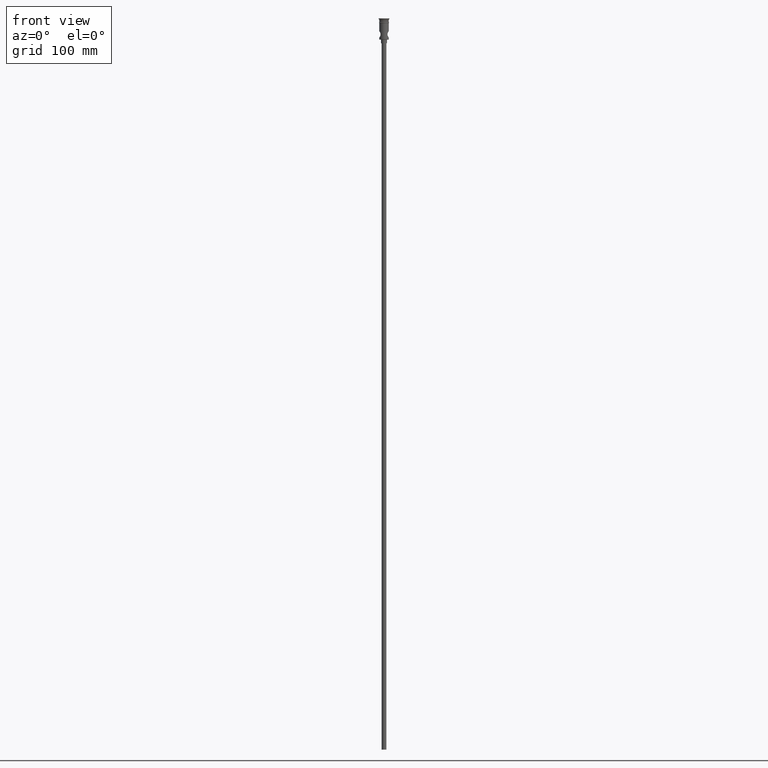
[diagram: clean part render]
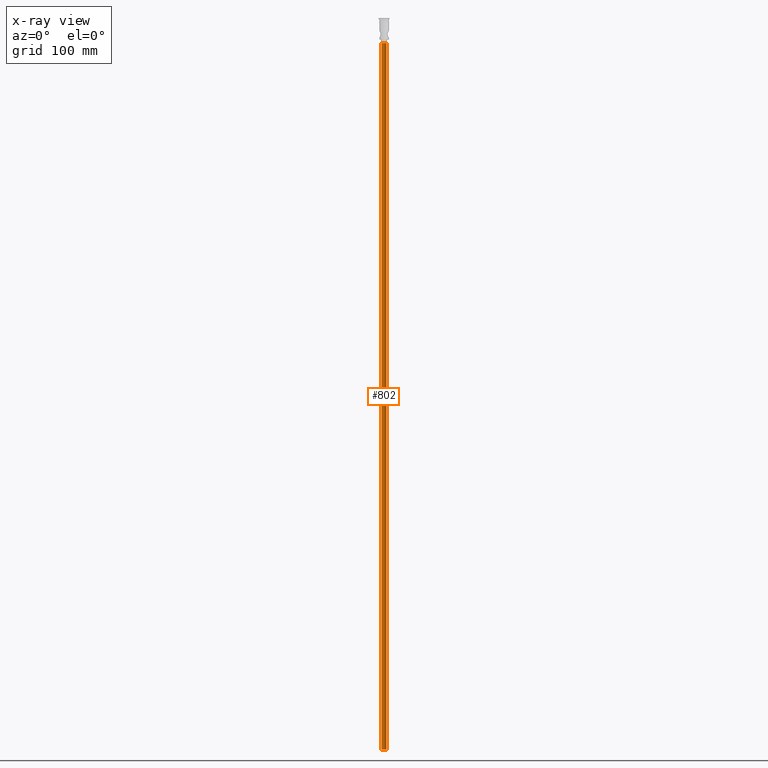
[diagram: x-ray — body ghosted, one internal face saturated and labeled with its STEP entity id]
A machine part, front view, then the same camera in x-ray: the body is ghosted and one INTERNAL B-rep face — a face not visible from any outside direction — is saturated and labeled: STEP entity #802.
In plain terms, the highlighted cylindrical surface (edge-blend (fillet) strip) has radius 2 mm, axis along (-0, -0, 1).
Its self-contained STEP definition (entity closure, byte-faithful):
#61 = ORIENTED_EDGE ( 'NONE', *, *, #576, .T. ) ;
#96 = DIRECTION ( 'NONE',  ( 1.000000000000000000, 0.000000000000000000, 0.000000000000000000 ) ) ;
#127 = DIRECTION ( 'NONE',  ( -0.000000000000000000, -0.000000000000000000, 1.000000000000000000 ) ) ;
#226 = CIRCLE ( 'NONE', #1291, 2.000000000000000000 ) ;
#313 = CARTESIAN_POINT ( 'NONE',  ( 0.000000000000000000, 0.000000000000000000, -618.0000000000000000 ) ) ;
#342 = CARTESIAN_POINT ( 'NONE',  ( 0.000000000000000000, 0.000000000000000000, -618.0000000000000000 ) ) ;
#349 = AXIS2_PLACEMENT_3D ( 'NONE', #342, #1326, #649 ) ;
#436 = LINE ( 'NONE', #1211, #1140 ) ;
#471 = ORIENTED_EDGE ( 'NONE', *, *, #1311, .T. ) ;
#522 = VERTEX_POINT ( 'NONE', #982 ) ;
#532 = VECTOR ( 'NONE', #127, 1000.000000000000000 ) ;
#565 = CARTESIAN_POINT ( 'NONE',  ( 0.000000000000000000, 0.000000000000000000, -20.99999999999999645 ) ) ;
#576 = EDGE_CURVE ( 'NONE', #869, #522, #226, .T. ) ;
#581 = LINE ( 'NONE', #1371, #532 ) ;
#611 = VERTEX_POINT ( 'NONE', #1180 ) ;
#649 = DIRECTION ( 'NONE',  ( -1.000000000000000000, 0.000000000000000000, 0.000000000000000000 ) ) ;
#656 = CARTESIAN_POINT ( 'NONE',  ( 2.000000000000000000, 0.000000000000000000, -618.0000000000000000 ) ) ;
#659 = CARTESIAN_POINT ( 'NONE',  ( -2.000000000000000000, 2.449293598294706414E-16, -20.99999999999999645 ) ) ;
#665 = EDGE_LOOP ( 'NONE', ( #1290, #471, #61, #1396 ) ) ;
#802 = ADVANCED_FACE ( 'NONE', ( #990 ), #851, .T. ) ;
#804 = DIRECTION ( 'NONE',  ( 0.000000000000000000, 0.000000000000000000, -1.000000000000000000 ) ) ;
#851 = CYLINDRICAL_SURFACE ( 'NONE', #1226, 2.000000000000000000 ) ;
#869 = VERTEX_POINT ( 'NONE', #659 ) ;
#894 = DIRECTION ( 'NONE',  ( -1.000000000000000000, 0.000000000000000000, 0.000000000000000000 ) ) ;
#976 = CIRCLE ( 'NONE', #349, 2.000000000000000000 ) ;
#982 = CARTESIAN_POINT ( 'NONE',  ( 2.000000000000000000, 0.000000000000000000, -20.99999999999999645 ) ) ;
#990 = FACE_OUTER_BOUND ( 'NONE', #665, .T. ) ;
#1105 = DIRECTION ( 'NONE',  ( -0.000000000000000000, -0.000000000000000000, 1.000000000000000000 ) ) ;
#1140 = VECTOR ( 'NONE', #1105, 1000.000000000000000 ) ;
#1180 = CARTESIAN_POINT ( 'NONE',  ( -2.000000000000000000, 2.449293598294706414E-16, -618.0000000000000000 ) ) ;
#1204 = EDGE_CURVE ( 'NONE', #611, #1298, #976, .T. ) ;
#1211 = CARTESIAN_POINT ( 'NONE',  ( -2.000000000000000000, 2.449293598294706414E-16, -618.0000000000000000 ) ) ;
#1226 = AXIS2_PLACEMENT_3D ( 'NONE', #313, #1435, #96 ) ;
#1290 = ORIENTED_EDGE ( 'NONE', *, *, #1204, .F. ) ;
#1291 = AXIS2_PLACEMENT_3D ( 'NONE', #565, #804, #894 ) ;
#1298 = VERTEX_POINT ( 'NONE', #656 ) ;
#1311 = EDGE_CURVE ( 'NONE', #611, #869, #436, .T. ) ;
#1326 = DIRECTION ( 'NONE',  ( 0.000000000000000000, 0.000000000000000000, -1.000000000000000000 ) ) ;
#1371 = CARTESIAN_POINT ( 'NONE',  ( 2.000000000000000000, 0.000000000000000000, -618.0000000000000000 ) ) ;
#1395 = EDGE_CURVE ( 'NONE', #1298, #522, #581, .T. ) ;
#1396 = ORIENTED_EDGE ( 'NONE', *, *, #1395, .F. ) ;
#1435 = DIRECTION ( 'NONE',  ( -0.000000000000000000, -0.000000000000000000, 1.000000000000000000 ) ) ;